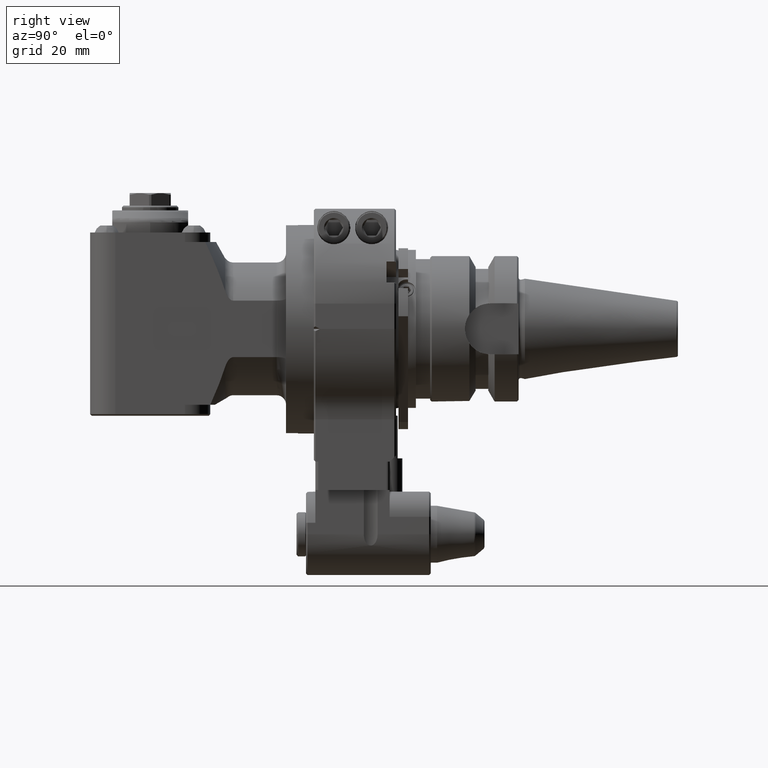
[diagram: clean part render]
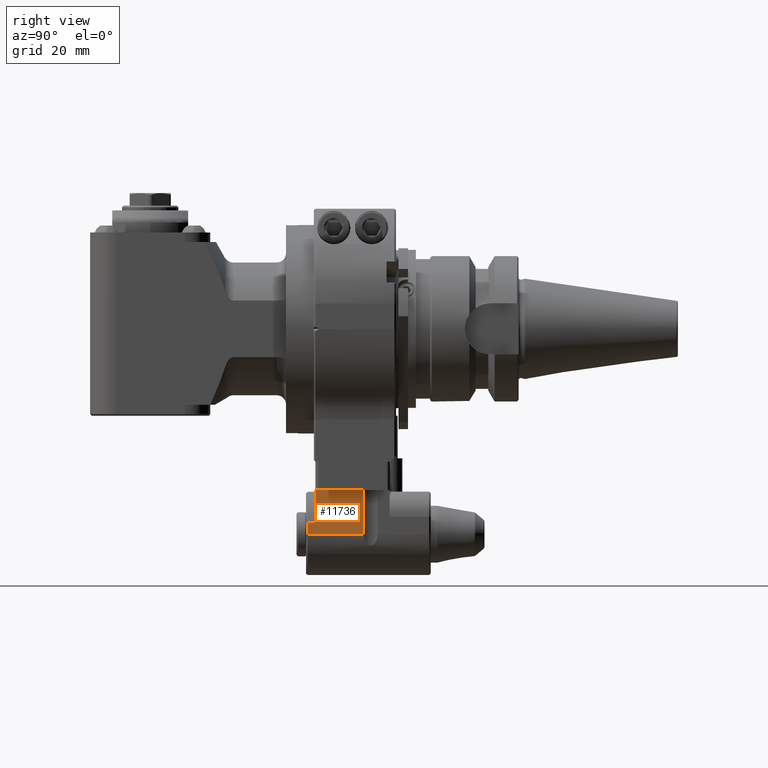
[diagram: same view with one face highlighted and labeled with its STEP entity id]
A machine part, right view. The second image highlights one B-rep face of the part: STEP entity #11736.
In plain terms, the highlighted planar face has unit normal (-1, 0, 0).
Its self-contained STEP definition (entity closure, byte-faithful):
#1069=LINE('',#20054,#1934);
#1110=LINE('',#20176,#1975);
#1111=LINE('',#20179,#1976);
#1112=LINE('',#20181,#1977);
#1113=LINE('',#20182,#1978);
#1114=LINE('',#20183,#1979);
#1934=VECTOR('',#15724,10.35994505536);
#1975=VECTOR('',#15825,3.640054944708);
#1976=VECTOR('',#15828,17.82055052823);
#1977=VECTOR('',#15829,14.);
#1978=VECTOR('',#15830,15.32055052823);
#1979=VECTOR('',#15831,2.5);
#3000=FACE_OUTER_BOUND('',#3803,.T.);
#3803=EDGE_LOOP('',(#9848,#9849,#9850,#9851,#9852,#9853));
#5464=VERTEX_POINT('',#20051);
#5465=VERTEX_POINT('',#20053);
#5507=VERTEX_POINT('',#20162);
#5510=VERTEX_POINT('',#20174);
#5511=VERTEX_POINT('',#20178);
#5512=VERTEX_POINT('',#20180);
#6960=EDGE_CURVE('',#5465,#5464,#1069,.T.);
#7020=EDGE_CURVE('',#5510,#5507,#1110,.T.);
#7021=EDGE_CURVE('',#5511,#5510,#1111,.T.);
#7022=EDGE_CURVE('',#5512,#5511,#1112,.T.);
#7023=EDGE_CURVE('',#5465,#5512,#1113,.T.);
#7024=EDGE_CURVE('',#5507,#5464,#1114,.T.);
#9848=ORIENTED_EDGE('',*,*,#7021,.F.);
#9849=ORIENTED_EDGE('',*,*,#7022,.F.);
#9850=ORIENTED_EDGE('',*,*,#7023,.F.);
#9851=ORIENTED_EDGE('',*,*,#6960,.T.);
#9852=ORIENTED_EDGE('',*,*,#7024,.F.);
#9853=ORIENTED_EDGE('',*,*,#7020,.F.);
#11148=PLANE('',#12942);
#11736=ADVANCED_FACE('',(#3000),#11148,.F.);
#12942=AXIS2_PLACEMENT_3D('',#20177,#15826,#15827);
#15724=DIRECTION('',(0.,0.,-1.));
#15825=DIRECTION('',(-2.553718414085E-12,0.,1.));
#15826=DIRECTION('center_axis',(-1.,0.,0.));
#15827=DIRECTION('ref_axis',(0.,-1.,0.));
#15828=DIRECTION('',(0.,-1.,-2.392325875571E-14));
#15829=DIRECTION('',(0.,0.,-1.));
#15830=DIRECTION('',(0.,1.,0.));
#15831=DIRECTION('',(3.717559593497E-12,1.,-2.706599389057E-11));
#20051=CARTESIAN_POINT('',(13.0000000000002,0.5,-61.35994505536));
#20053=CARTESIAN_POINT('',(13.0000000000002,0.5,-51.));
#20054=CARTESIAN_POINT('',(13.0000000000002,0.5,-51.));
#20162=CARTESIAN_POINT('',(12.9999999999902,-2.,-61.35994505529));
#20174=CARTESIAN_POINT('',(13.0000000000002,-2.,-65.));
#20176=CARTESIAN_POINT('',(13.0000000000002,-2.,-65.));
#20177=CARTESIAN_POINT('Origin',(13.0000000000002,46.3,-37.7999976));
#20178=CARTESIAN_POINT('',(13.0000000000002,15.82055052823,-65.));
#20179=CARTESIAN_POINT('',(13.0000000000002,15.82055052823,-65.));
#20180=CARTESIAN_POINT('',(13.0000000000002,15.82055052823,-51.));
#20181=CARTESIAN_POINT('',(13.0000000000002,15.82055052823,-51.));
#20182=CARTESIAN_POINT('',(13.0000000000002,0.5,-51.));
#20183=CARTESIAN_POINT('',(12.9999999999902,-2.,-61.35994505529));